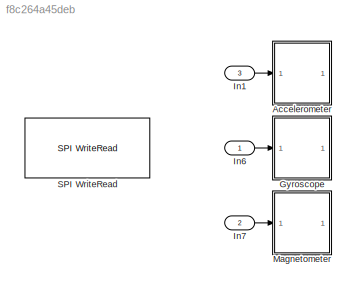
MODEL slx_f8c264a45deb
KIND model
CONFIG AbsTol = auto
CONFIG EnableMultiTasking = off
CONFIG FixedStep = auto
CONFIG MaxStep = auto
CONFIG MinStep = auto
CONFIG RelTol = 1e-3
CONFIG SampleTimeConstraint = Unconstrained
CONFIG Solver = VariableStepAuto
CONFIG SolverName = VariableStepAuto
CONFIG StartTime = 0.0
CONFIG StopTime = 10.0
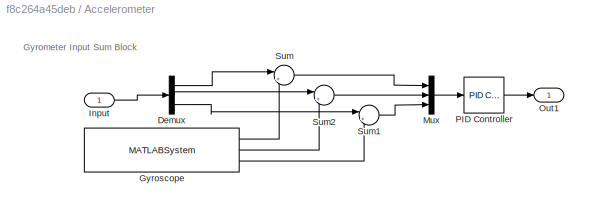
BLOCK [SubSystem] Accelerometer
  Ports = [1, 1]
  RequestExecContextInheritance = off
  Variant = off
BLOCK [Demux] Accelerometer/Demux
  DisplayOption = bar
  Outputs = 3
  Ports = [1, 3]
BLOCK [MATLABSystem] Accelerometer/Gyroscope
  DLPFmode = 0
  MaskDisplay = disp('soMPU6050Gyro');\nport_label('output',1,'xvel');\nport_label('output',2,'yvel');\nport_label('output',3,'zvel');
  MaskType = soMPU6050Gyro
  Ports = [0, 3]
  System = soMPU6050Gyro
BLOCK [Inport] Accelerometer/Input
  IconDisplay = Port number
BLOCK [Mux] Accelerometer/Mux
  DisplayOption = bar
  Inputs = 3
  Ports = [3, 1]
BLOCK [Outport] Accelerometer/Out1
  IconDisplay = Port number
BLOCK [Reference] Accelerometer/PID Controller  REF=simulink/Continuous/PID Controller
  Ports = [1, 1]
  SourceBlock = simulink/Continuous/PID Controller
  SourceProductBaseCode = SL
  SourceProductName = Simulink
  SourceType = PID 1dof
BLOCK [Sum] Accelerometer/Sum
  IconShape = round
  InputSameDT = off
  Inputs = |+-
  OutDataTypeStr = Inherit: Inherit via internal rule
  Ports = [2, 1]
  SaturateOnIntegerOverflow = off
BLOCK [Sum] Accelerometer/Sum1
  IconShape = round
  InputSameDT = off
  Inputs = |+-
  OutDataTypeStr = Inherit: Inherit via internal rule
  Ports = [2, 1]
  SaturateOnIntegerOverflow = off
BLOCK [Sum] Accelerometer/Sum2
  IconShape = round
  InputSameDT = off
  Inputs = |+-
  OutDataTypeStr = Inherit: Inherit via internal rule
  Ports = [2, 1]
  SaturateOnIntegerOverflow = off
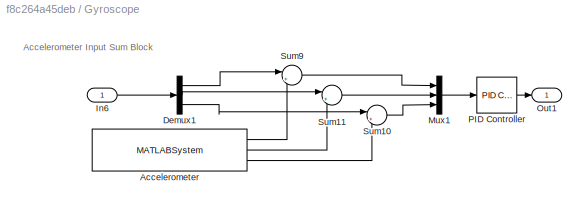
BLOCK [SubSystem] Gyroscope
  Ports = [1, 1]
  RequestExecContextInheritance = off
  Variant = off
BLOCK [MATLABSystem] Gyroscope/Accelerometer
  MaskDisplay = disp('soMPU6050Accel');\nport_label('output',1,'xaccel');\nport_label('output',2,'yaccel');\nport_label('output',3,'zaccel');
  MaskType = soMPU6050Accel
  Ports = [0, 3]
  System = soMPU6050Accel
BLOCK [Demux] Gyroscope/Demux1
  DisplayOption = bar
  Outputs = 3
  Ports = [1, 3]
BLOCK [Inport] Gyroscope/In6
  IconDisplay = Port number
BLOCK [Mux] Gyroscope/Mux1
  DisplayOption = bar
  Inputs = 3
  Ports = [3, 1]
BLOCK [Outport] Gyroscope/Out1
  IconDisplay = Port number
BLOCK [Reference] Gyroscope/PID Controller  REF=simulink/Continuous/PID Controller
  Ports = [1, 1]
  SourceBlock = simulink/Continuous/PID Controller
  SourceProductBaseCode = SL
  SourceProductName = Simulink
  SourceType = PID 1dof
BLOCK [Sum] Gyroscope/Sum10
  IconShape = round
  InputSameDT = off
  Inputs = |+-
  OutDataTypeStr = Inherit: Inherit via internal rule
  Ports = [2, 1]
  SaturateOnIntegerOverflow = off
BLOCK [Sum] Gyroscope/Sum11
  IconShape = round
  InputSameDT = off
  Inputs = |+-
  OutDataTypeStr = Inherit: Inherit via internal rule
  Ports = [2, 1]
  SaturateOnIntegerOverflow = off
BLOCK [Sum] Gyroscope/Sum9
  IconShape = round
  InputSameDT = off
  Inputs = |+-
  OutDataTypeStr = Inherit: Inherit via internal rule
  Ports = [2, 1]
  SaturateOnIntegerOverflow = off
BLOCK [Inport] In1
  IconDisplay = Port number
  Port = 3
BLOCK [Inport] In6
  IconDisplay = Port number
BLOCK [Inport] In7
  IconDisplay = Port number
  Port = 2
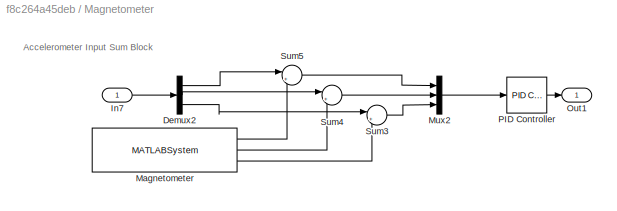
BLOCK [SubSystem] Magnetometer
  Ports = [1, 1]
  RequestExecContextInheritance = off
  Variant = off
BLOCK [Demux] Magnetometer/Demux2
  DisplayOption = bar
  Outputs = 3
  Ports = [1, 3]
BLOCK [Inport] Magnetometer/In7
  IconDisplay = Port number
BLOCK [MATLABSystem] Magnetometer/Magnetometer
  MaskDisplay = disp('soHMC5883L');\nport_label('output',1,'xmag');\nport_label('output',2,'ymag');\nport_label('output',3,'zmag');
  MaskType = soHMC5883L
  Ports = [0, 3]
  System = soHMC5883L
BLOCK [Mux] Magnetometer/Mux2
  DisplayOption = bar
  Inputs = 3
  Ports = [3, 1]
BLOCK [Outport] Magnetometer/Out1
  IconDisplay = Port number
BLOCK [Reference] Magnetometer/PID Controller  REF=simulink/Continuous/PID Controller
  Ports = [1, 1]
  SourceBlock = simulink/Continuous/PID Controller
  SourceProductBaseCode = SL
  SourceProductName = Simulink
  SourceType = PID 1dof
BLOCK [Sum] Magnetometer/Sum3
  IconShape = round
  InputSameDT = off
  Inputs = |+-
  OutDataTypeStr = Inherit: Inherit via internal rule
  Ports = [2, 1]
  SaturateOnIntegerOverflow = off
BLOCK [Sum] Magnetometer/Sum4
  IconShape = round
  InputSameDT = off
  Inputs = |+-
  OutDataTypeStr = Inherit: Inherit via internal rule
  Ports = [2, 1]
  SaturateOnIntegerOverflow = off
BLOCK [Sum] Magnetometer/Sum5
  IconShape = round
  InputSameDT = off
  Inputs = |+-
  OutDataTypeStr = Inherit: Inherit via internal rule
  Ports = [2, 1]
  SaturateOnIntegerOverflow = off
BLOCK [Reference] SPI WriteRead  REF=arduinolib/SPI WriteRead
  Ports = [1, 1]
  SourceBlock = arduinolib/SPI WriteRead
  SourceProductBaseCode = ARDUINO
  SourceProductName = Simulink Support Package for Arduino Hardware
  SourceType = SPI WriteRead
ANNOTATION Accelerometer: Gyrometer Input Sum Block
ANNOTATION Gyroscope: Accelerometer Input Sum Block
ANNOTATION Magnetometer: Accelerometer Input Sum Block
LINE Accelerometer/Demux:1 -> Accelerometer/Sum:1
LINE Accelerometer/Demux:2 -> Accelerometer/Sum2:1
LINE Accelerometer/Demux:3 -> Accelerometer/Sum1:1
LINE Accelerometer/Gyroscope:1 -> Accelerometer/Sum:2
LINE Accelerometer/Gyroscope:2 -> Accelerometer/Sum2:2
LINE Accelerometer/Gyroscope:3 -> Accelerometer/Sum1:2
LINE Accelerometer/Input:1 -> Accelerometer/Demux:1
LINE Accelerometer/Mux:1 -> Accelerometer/PID Controller:1
LINE Accelerometer/PID Controller:1 -> Accelerometer/Out1:1
LINE Accelerometer/Sum1:1 -> Accelerometer/Mux:3
LINE Accelerometer/Sum2:1 -> Accelerometer/Mux:2
LINE Accelerometer/Sum:1 -> Accelerometer/Mux:1
LINE Gyroscope/Accelerometer:1 -> Gyroscope/Sum9:2
LINE Gyroscope/Accelerometer:2 -> Gyroscope/Sum11:2
LINE Gyroscope/Accelerometer:3 -> Gyroscope/Sum10:2
LINE Gyroscope/Demux1:1 -> Gyroscope/Sum9:1
LINE Gyroscope/Demux1:2 -> Gyroscope/Sum11:1
LINE Gyroscope/Demux1:3 -> Gyroscope/Sum10:1
LINE Gyroscope/In6:1 -> Gyroscope/Demux1:1
LINE Gyroscope/Mux1:1 -> Gyroscope/PID Controller:1
LINE Gyroscope/PID Controller:1 -> Gyroscope/Out1:1
LINE Gyroscope/Sum10:1 -> Gyroscope/Mux1:3
LINE Gyroscope/Sum11:1 -> Gyroscope/Mux1:2
LINE Gyroscope/Sum9:1 -> Gyroscope/Mux1:1
LINE In1:1 -> Accelerometer:1
LINE In6:1 -> Gyroscope:1
LINE In7:1 -> Magnetometer:1
LINE Magnetometer/Demux2:1 -> Magnetometer/Sum5:1
LINE Magnetometer/Demux2:2 -> Magnetometer/Sum4:1
LINE Magnetometer/Demux2:3 -> Magnetometer/Sum3:1
LINE Magnetometer/In7:1 -> Magnetometer/Demux2:1
LINE Magnetometer/Magnetometer:1 -> Magnetometer/Sum5:2
LINE Magnetometer/Magnetometer:2 -> Magnetometer/Sum4:2
LINE Magnetometer/Magnetometer:3 -> Magnetometer/Sum3:2
LINE Magnetometer/Mux2:1 -> Magnetometer/PID Controller:1
LINE Magnetometer/PID Controller:1 -> Magnetometer/Out1:1
LINE Magnetometer/Sum3:1 -> Magnetometer/Mux2:3
LINE Magnetometer/Sum4:1 -> Magnetometer/Mux2:2
LINE Magnetometer/Sum5:1 -> Magnetometer/Mux2:1
